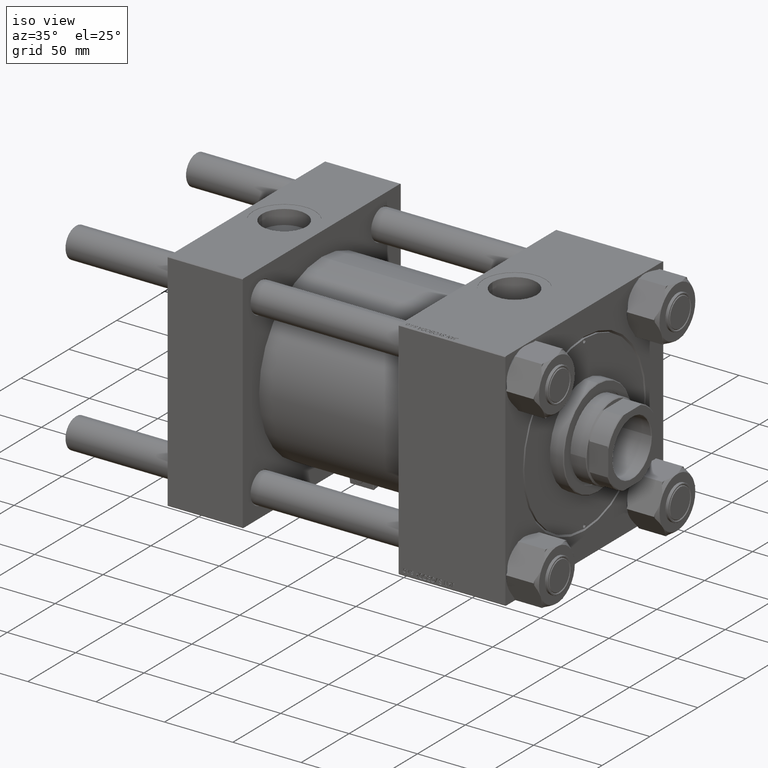
[diagram: clean part render]
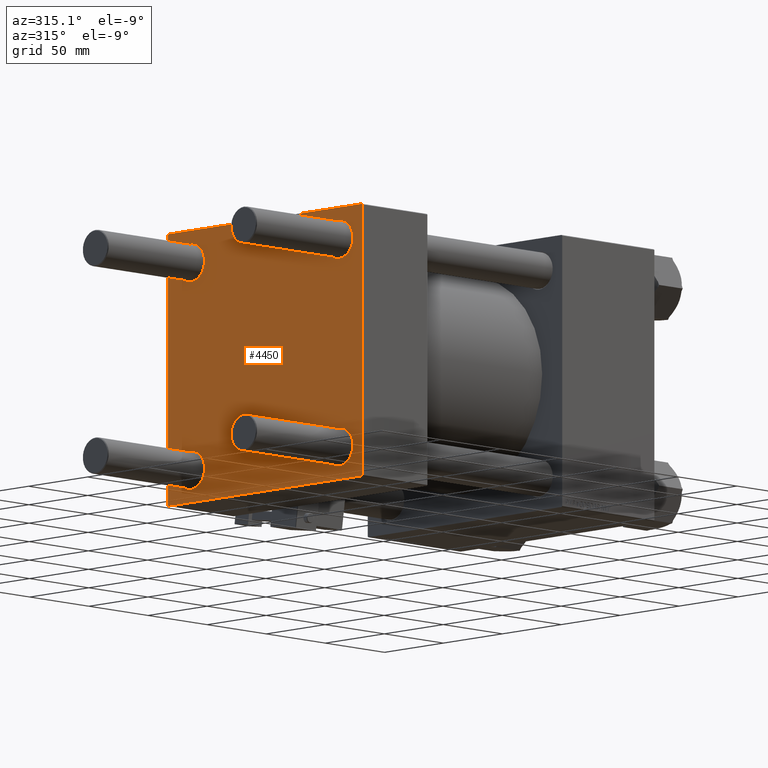
[diagram: tour spotlight — one face highlighted and labeled with its STEP entity id]
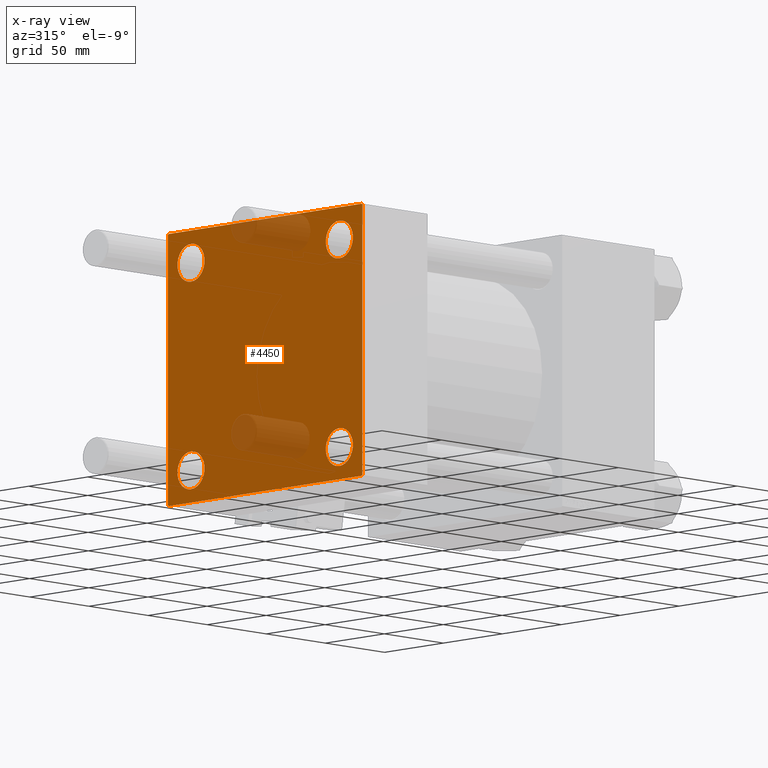
[diagram: x-ray of the same camera — body ghosted, this tour face saturated]
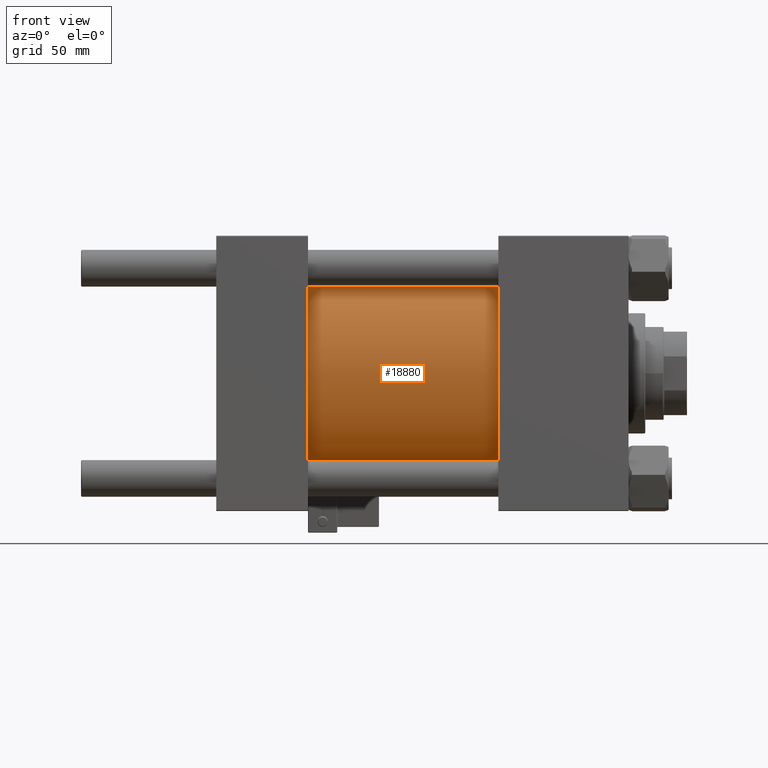
[diagram: tour spotlight — one face highlighted and labeled with its STEP entity id]
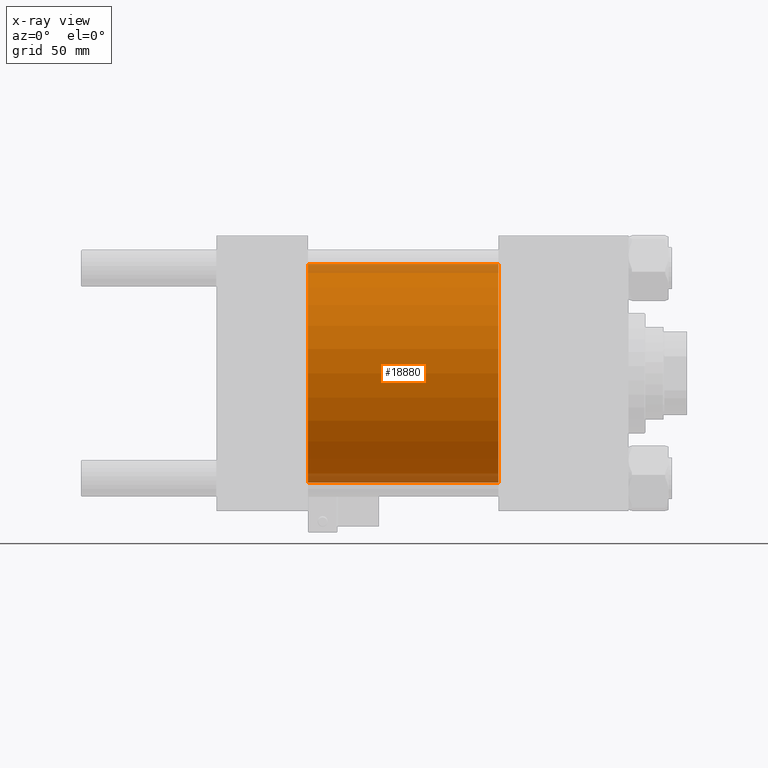
[diagram: x-ray of the same camera — body ghosted, this tour face saturated]
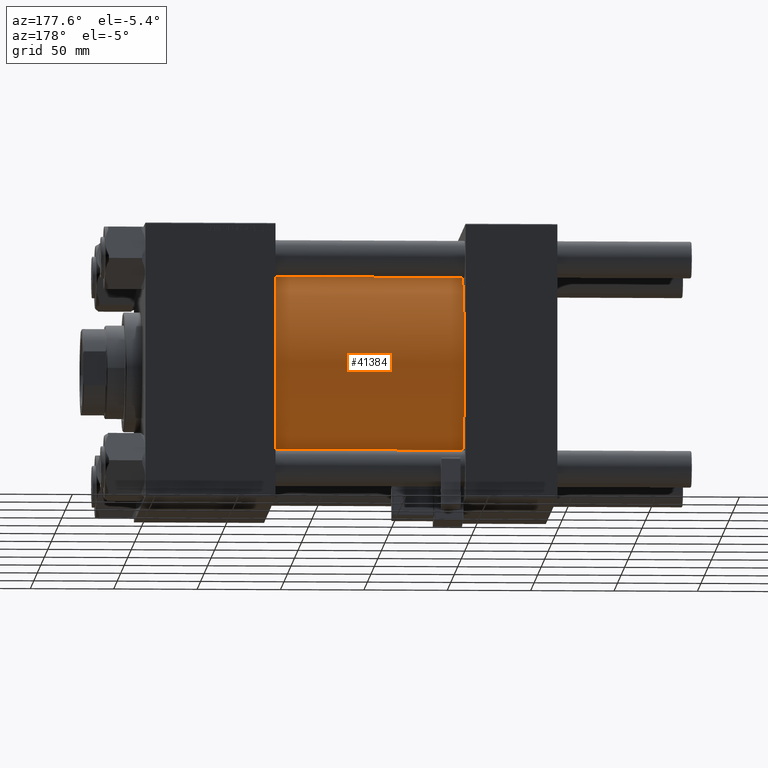
[diagram: tour spotlight — one face highlighted and labeled with its STEP entity id]
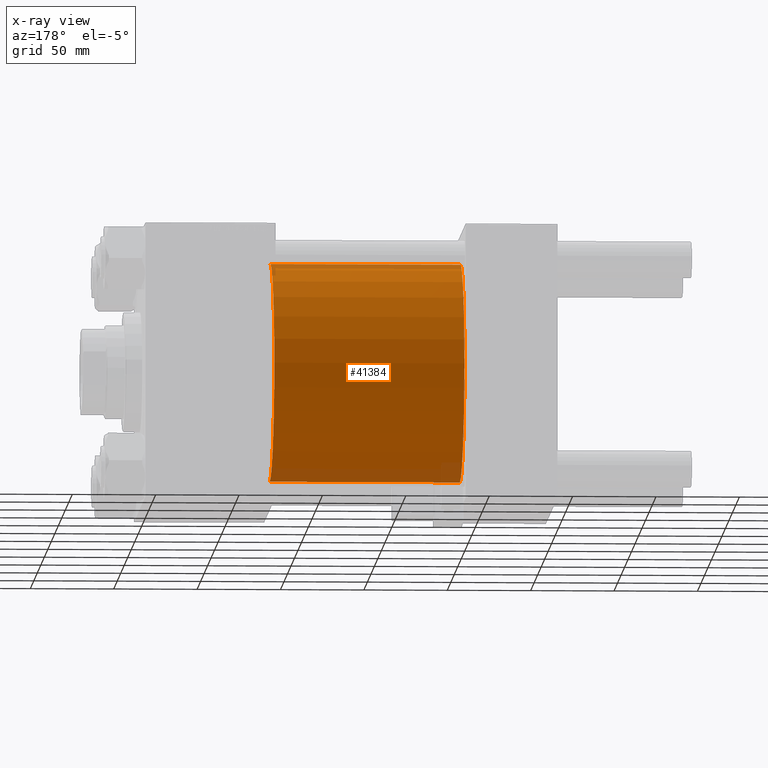
[diagram: x-ray of the same camera — body ghosted, this tour face saturated]
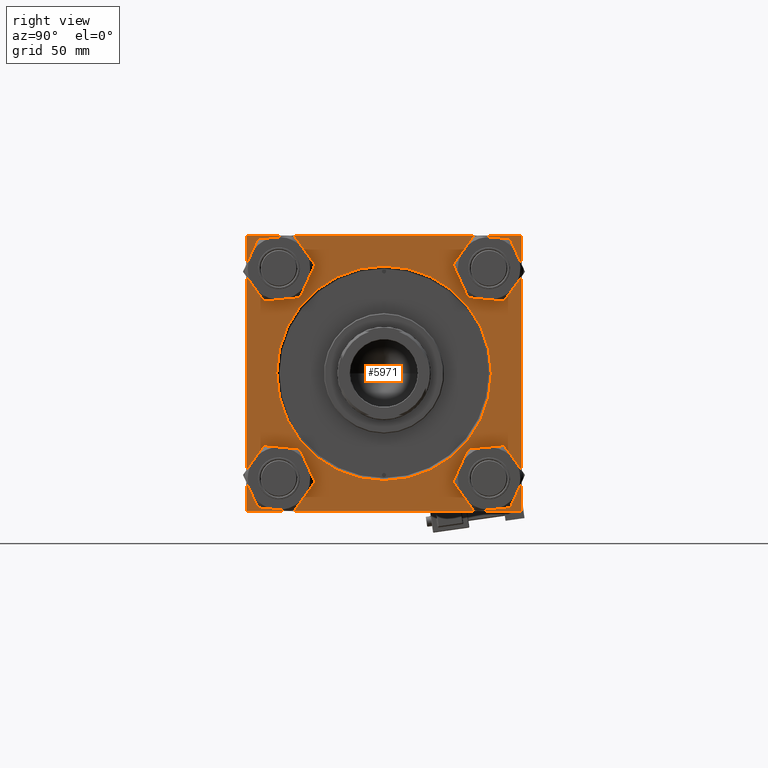
[diagram: tour spotlight — one face highlighted and labeled with its STEP entity id]
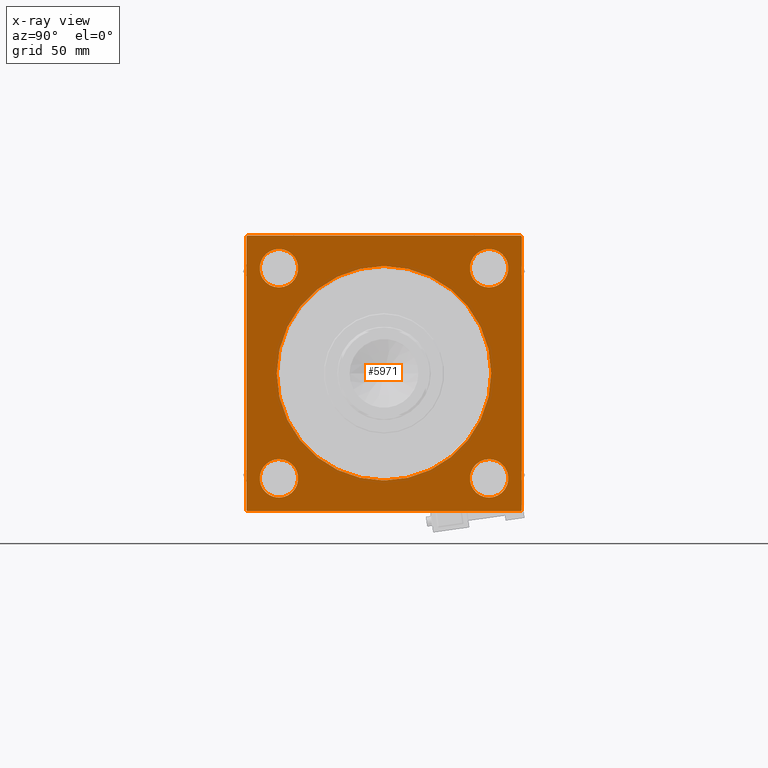
[diagram: x-ray of the same camera — body ghosted, this tour face saturated]
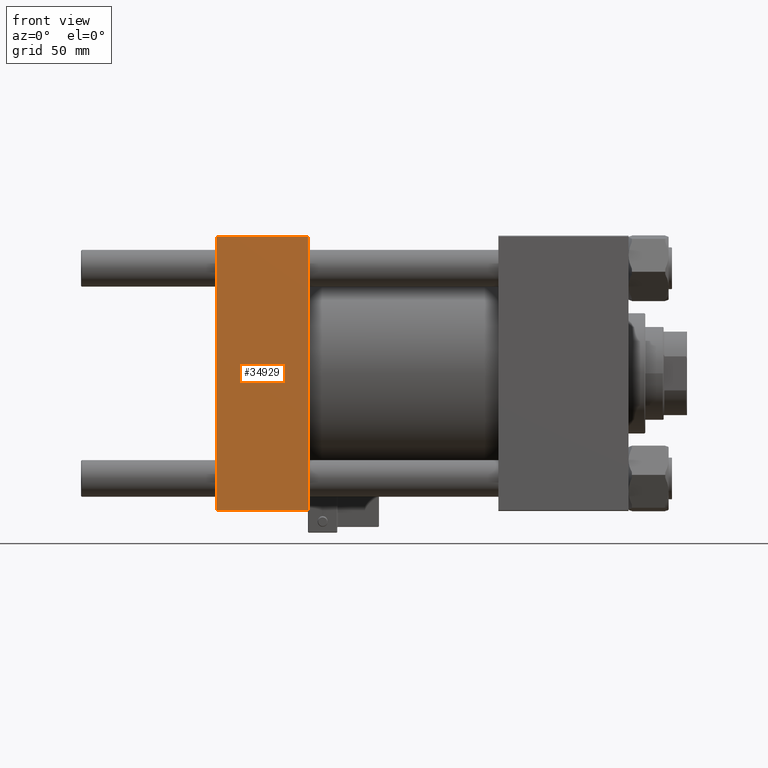
[diagram: tour spotlight — one face highlighted and labeled with its STEP entity id]
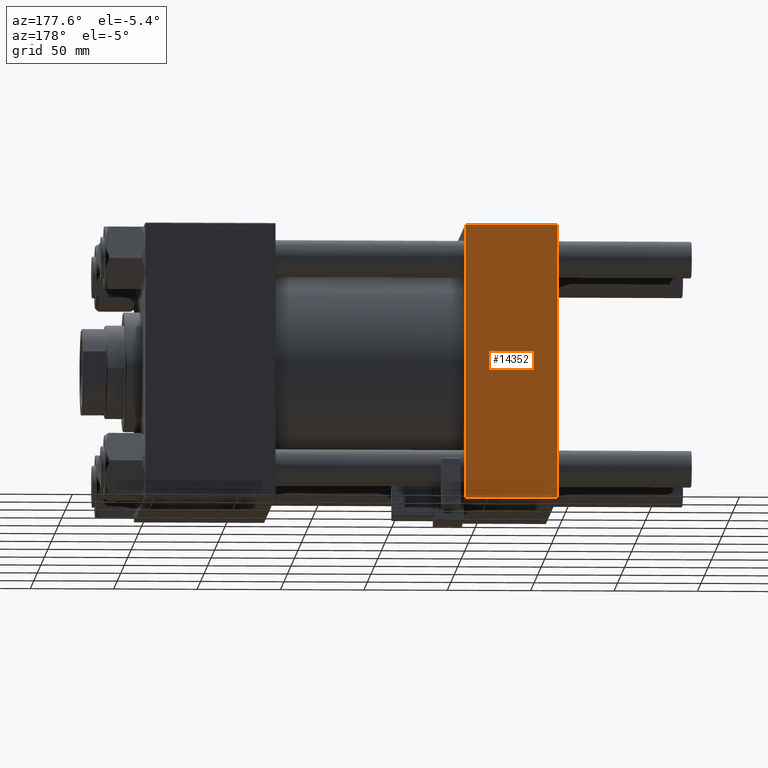
[diagram: tour spotlight — one face highlighted and labeled with its STEP entity id]
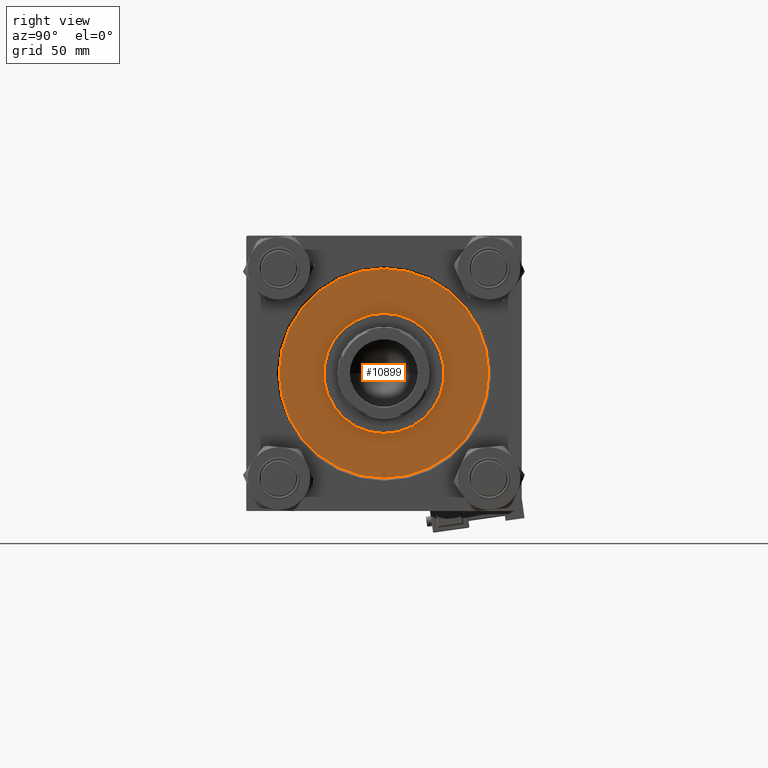
[diagram: tour spotlight — one face highlighted and labeled with its STEP entity id]
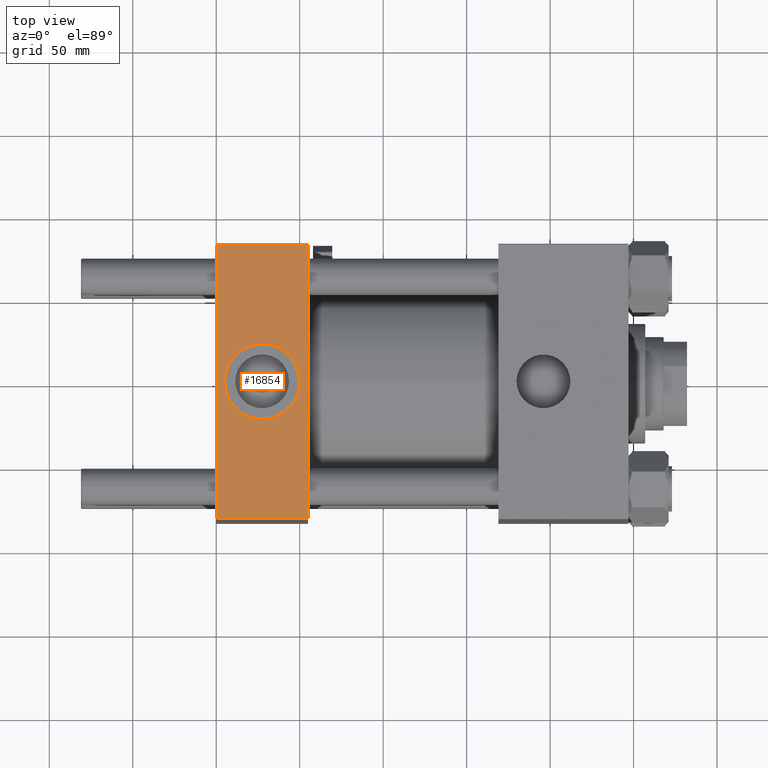
[diagram: tour spotlight — one face highlighted and labeled with its STEP entity id]
A machine part: a face-by-face anatomy tour. The part has 1265 B-rep faces; the first image is the clean iso view, then the 8 largest visible faces are spotlighted one at a time (largest first), each with its STEP entity span.

Face 1 — auxiliary view, entity #4450. An x-ray twin of the same camera follows (body ghosted, this face saturated) — the face is partly hidden behind the body. In plain terms, the highlighted planar face has unit normal (-1, 0, 0).
Definition (entity closure, byte-faithful):
#275 = DIRECTION ( 'NONE',  ( -0.000000000000000000, 0.7071067811865474617, 0.7071067811865474617 ) ) ;
#1589 = VERTEX_POINT ( 'NONE', #16497 ) ;
#1782 = DIRECTION ( 'NONE',  ( 1.000000000000000000, -0.000000000000000000, -0.000000000000000000 ) ) ;
#2125 = CARTESIAN_POINT ( 'NONE',  ( 0.000000000000000000, -82.49999999999997158, 82.00000000000001421 ) ) ;
#2413 = EDGE_CURVE ( 'NONE', #40218, #11908, #8222, .T. ) ;
#2527 = EDGE_LOOP ( 'NONE', ( #8486, #33214 ) ) ;
#2542 = FACE_OUTER_BOUND ( 'NONE', #19112, .T. ) ;
#2557 = DIRECTION ( 'NONE',  ( 0.000000000000000000, 0.000000000000000000, 1.000000000000000000 ) ) ;
#2859 = VERTEX_POINT ( 'NONE', #24701 ) ;
#3770 = CARTESIAN_POINT ( 'NONE',  ( 0.000000000000000000, -62.94999999999998153, 62.95000000000001705 ) ) ;
#3818 = VERTEX_POINT ( 'NONE', #6782 ) ;
#4145 = ORIENTED_EDGE ( 'NONE', *, *, #33357, .T. ) ;
#4158 = VERTEX_POINT ( 'NONE', #28048 ) ;
#4205 = CARTESIAN_POINT ( 'NONE',  ( 0.000000000000000000, 62.95000000000000284, 51.44999999999999574 ) ) ;
#4450 = ADVANCED_FACE ( 'NONE', ( #28125, #22788, #23059, #27316, #2542 ), #15606, .T. ) ;
#5555 = DIRECTION ( 'NONE',  ( 0.000000000000000000, 0.000000000000000000, -1.000000000000000000 ) ) ;
#6246 = CARTESIAN_POINT ( 'NONE',  ( 0.000000000000000000, -62.94999999999998153, 62.95000000000001705 ) ) ;
#6301 = CARTESIAN_POINT ( 'NONE',  ( 0.000000000000000000, -62.94999999999998153, -62.95000000000001705 ) ) ;
#6599 = CARTESIAN_POINT ( 'NONE',  ( 0.000000000000000000, -62.94999999999998153, 51.45000000000000995 ) ) ;
#6782 = CARTESIAN_POINT ( 'NONE',  ( 0.000000000000000000, -82.00000000000000000, -82.50000000000000000 ) ) ;
#6815 = CARTESIAN_POINT ( 'NONE',  ( 0.000000000000000000, -62.94999999999998153, -62.95000000000001705 ) ) ;
#6883 = VERTEX_POINT ( 'NONE', #50096 ) ;
#6906 = DIRECTION ( 'NONE',  ( 0.000000000000000000, -0.7071067811865376918, 0.7071067811865574537 ) ) ;
#7128 = ORIENTED_EDGE ( 'NONE', *, *, #17512, .T. ) ;
#7504 = DIRECTION ( 'NONE',  ( 0.000000000000000000, 0.000000000000000000, 1.000000000000000000 ) ) ;
#7570 = DIRECTION ( 'NONE',  ( -0.000000000000000000, -0.7071067811865474617, -0.7071067811865474617 ) ) ;
#7647 = AXIS2_PLACEMENT_3D ( 'NONE', #6301, #10819, #23088 ) ;
#8139 = EDGE_LOOP ( 'NONE', ( #28760, #4145 ) ) ;
#8222 = CIRCLE ( 'NONE', #51672, 11.50000000000001066 ) ;
#8258 = CARTESIAN_POINT ( 'NONE',  ( 0.000000000000000000, 82.00000000000005684, -82.49999999999997158 ) ) ;
#8486 = ORIENTED_EDGE ( 'NONE', *, *, #14112, .T. ) ;
#8572 = VECTOR ( 'NONE', #6906, 999.9999999999998863 ) ;
#8696 = ORIENTED_EDGE ( 'NONE', *, *, #22375, .F. ) ;
#10025 = VECTOR ( 'NONE', #5555, 1000.000000000000000 ) ;
#10273 = ORIENTED_EDGE ( 'NONE', *, *, #46128, .F. ) ;
#10634 = EDGE_CURVE ( 'NONE', #20204, #1589, #13550, .T. ) ;
#10819 = DIRECTION ( 'NONE',  ( 1.000000000000000000, -0.000000000000000000, -0.000000000000000000 ) ) ;
#11902 = CARTESIAN_POINT ( 'NONE',  ( 0.000000000000000000, 82.50000000000002842, 82.00000000000005684 ) ) ;
#11908 = VERTEX_POINT ( 'NONE', #29249 ) ;
#11925 = CARTESIAN_POINT ( 'NONE',  ( 0.000000000000000000, -81.99999999999997158, 82.50000000000001421 ) ) ;
#13550 = LINE ( 'NONE', #14048, #10025 ) ;
#14048 = CARTESIAN_POINT ( 'NONE',  ( 0.000000000000000000, 82.50000000000002842, 82.50000000000002842 ) ) ;
#14112 = EDGE_CURVE ( 'NONE', #6883, #49778, #17023, .T. ) ;
#14906 = DIRECTION ( 'NONE',  ( 0.000000000000000000, 0.000000000000000000, 1.000000000000000000 ) ) ;
#15445 = CIRCLE ( 'NONE', #37574, 11.50000000000001066 ) ;
#15606 = PLANE ( 'NONE',  #47303 ) ;
#15713 = CARTESIAN_POINT ( 'NONE',  ( 0.000000000000000000, 62.95000000000000284, 62.95000000000000284 ) ) ;
#15944 = EDGE_CURVE ( 'NONE', #3818, #31904, #46834, .T. ) ;
#16497 = CARTESIAN_POINT ( 'NONE',  ( 0.000000000000000000, 82.50000000000002842, -82.00000000000000000 ) ) ;
#17021 = CIRCLE ( 'NONE', #31430, 11.50000000000001066 ) ;
#17023 = CIRCLE ( 'NONE', #28075, 11.50000000000001066 ) ;
#17180 = LINE ( 'NONE', #44846, #24661 ) ;
#17512 = EDGE_CURVE ( 'NONE', #4158, #20204, #17180, .T. ) ;
#18024 = DIRECTION ( 'NONE',  ( 0.000000000000000000, 0.000000000000000000, 1.000000000000000000 ) ) ;
#18768 = DIRECTION ( 'NONE',  ( 1.000000000000000000, -0.000000000000000000, -0.000000000000000000 ) ) ;
#18794 = CARTESIAN_POINT ( 'NONE',  ( 0.000000000000000000, 0.000000000000000000, 0.000000000000000000 ) ) ;
#18887 = VECTOR ( 'NONE', #35138, 1000.000000000000000 ) ;
#19112 = EDGE_LOOP ( 'NONE', ( #43533, #52074, #25009, #34011, #8696, #40655, #10273, #7128 ) ) ;
#19335 = EDGE_LOOP ( 'NONE', ( #27097, #22853 ) ) ;
#19498 = EDGE_CURVE ( 'NONE', #1589, #41956, #34733, .T. ) ;
#19880 = CARTESIAN_POINT ( 'NONE',  ( 0.000000000000000000, 62.95000000000000284, -62.95000000000000284 ) ) ;
#20204 = VERTEX_POINT ( 'NONE', #11902 ) ;
#21871 = EDGE_CURVE ( 'NONE', #39442, #31887, #15445, .T. ) ;
#22163 = VECTOR ( 'NONE', #7570, 1000.000000000000114 ) ;
#22375 = EDGE_CURVE ( 'NONE', #46216, #31904, #43632, .T. ) ;
#22788 = FACE_BOUND ( 'NONE', #8139, .T. ) ;
#22853 = ORIENTED_EDGE ( 'NONE', *, *, #44013, .T. ) ;
#23059 = FACE_BOUND ( 'NONE', #19335, .T. ) ;
#23088 = DIRECTION ( 'NONE',  ( 0.000000000000000000, 0.000000000000000000, 1.000000000000000000 ) ) ;
#23678 = ORIENTED_EDGE ( 'NONE', *, *, #2413, .T. ) ;
#24661 = VECTOR ( 'NONE', #48838, 1000.000000000000114 ) ;
#24701 = CARTESIAN_POINT ( 'NONE',  ( 0.000000000000000000, -62.94999999999998153, -74.45000000000003126 ) ) ;
#25009 = ORIENTED_EDGE ( 'NONE', *, *, #42771, .T. ) ;
#25602 = LINE ( 'NONE', #29326, #44199 ) ;
#27097 = ORIENTED_EDGE ( 'NONE', *, *, #21871, .T. ) ;
#27316 = FACE_BOUND ( 'NONE', #34239, .T. ) ;
#28048 = CARTESIAN_POINT ( 'NONE',  ( 0.000000000000000000, 82.00000000000005684, 82.50000000000002842 ) ) ;
#28075 = AXIS2_PLACEMENT_3D ( 'NONE', #6246, #18768, #46188 ) ;
#28125 = FACE_BOUND ( 'NONE', #2527, .T. ) ;
#28544 = VERTEX_POINT ( 'NONE', #11925 ) ;
#28760 = ORIENTED_EDGE ( 'NONE', *, *, #45920, .T. ) ;
#28835 = CIRCLE ( 'NONE', #49333, 11.50000000000001066 ) ;
#29249 = CARTESIAN_POINT ( 'NONE',  ( 0.000000000000000000, 62.95000000000000284, 74.45000000000001705 ) ) ;
#29326 = CARTESIAN_POINT ( 'NONE',  ( 0.000000000000000000, 82.50000000000002842, 82.50000000000002842 ) ) ;
#30009 = CARTESIAN_POINT ( 'NONE',  ( 0.000000000000000000, 62.95000000000000284, 62.95000000000000284 ) ) ;
#30865 = CARTESIAN_POINT ( 'NONE',  ( 0.000000000000000000, -82.49999999999997158, 82.50000000000001421 ) ) ;
#31430 = AXIS2_PLACEMENT_3D ( 'NONE', #3770, #52215, #7504 ) ;
#31835 = DIRECTION ( 'NONE',  ( 0.000000000000000000, 0.000000000000000000, 1.000000000000000000 ) ) ;
#31887 = VERTEX_POINT ( 'NONE', #34914 ) ;
#31904 = VERTEX_POINT ( 'NONE', #38379 ) ;
#32067 = CARTESIAN_POINT ( 'NONE',  ( 0.000000000000000000, 62.95000000000000284, -62.95000000000000284 ) ) ;
#33062 = DIRECTION ( 'NONE',  ( 0.000000000000000000, -1.000000000000000000, -8.410780489584519171E-17 ) ) ;
#33214 = ORIENTED_EDGE ( 'NONE', *, *, #46094, .T. ) ;
#33357 = EDGE_CURVE ( 'NONE', #2859, #36527, #51480, .T. ) ;
#34011 = ORIENTED_EDGE ( 'NONE', *, *, #15944, .T. ) ;
#34239 = EDGE_LOOP ( 'NONE', ( #35351, #23678 ) ) ;
#34387 = LINE ( 'NONE', #35172, #43305 ) ;
#34733 = LINE ( 'NONE', #50950, #22163 ) ;
#34914 = CARTESIAN_POINT ( 'NONE',  ( 0.000000000000000000, 62.95000000000000284, -74.45000000000001705 ) ) ;
#35138 = DIRECTION ( 'NONE',  ( 0.000000000000000000, -1.682156097916903588E-16, -1.000000000000000000 ) ) ;
#35172 = CARTESIAN_POINT ( 'NONE',  ( 0.000000000000000000, 82.50000000000002842, -82.49999999999997158 ) ) ;
#35351 = ORIENTED_EDGE ( 'NONE', *, *, #51069, .T. ) ;
#35358 = AXIS2_PLACEMENT_3D ( 'NONE', #6815, #43817, #2557 ) ;
#35701 = CIRCLE ( 'NONE', #7647, 11.50000000000001066 ) ;
#36527 = VERTEX_POINT ( 'NONE', #51508 ) ;
#36751 = CARTESIAN_POINT ( 'NONE',  ( 0.000000000000000000, -82.25000000000000000, 82.25000000000000000 ) ) ;
#37574 = AXIS2_PLACEMENT_3D ( 'NONE', #32067, #52544, #45094 ) ;
#38133 = EDGE_CURVE ( 'NONE', #46216, #28544, #48711, .T. ) ;
#38379 = CARTESIAN_POINT ( 'NONE',  ( 0.000000000000000000, -82.50000000000000000, -81.99999999999998579 ) ) ;
#39127 = DIRECTION ( 'NONE',  ( 1.000000000000000000, -0.000000000000000000, -0.000000000000000000 ) ) ;
#39282 = DIRECTION ( 'NONE',  ( -1.000000000000000000, 0.000000000000000000, 0.000000000000000000 ) ) ;
#39442 = VERTEX_POINT ( 'NONE', #43795 ) ;
#40218 = VERTEX_POINT ( 'NONE', #4205 ) ;
#40655 = ORIENTED_EDGE ( 'NONE', *, *, #38133, .T. ) ;
#40979 = AXIS2_PLACEMENT_3D ( 'NONE', #30009, #1782, #18024 ) ;
#41956 = VERTEX_POINT ( 'NONE', #8258 ) ;
#42331 = VECTOR ( 'NONE', #275, 1000.000000000000114 ) ;
#42771 = EDGE_CURVE ( 'NONE', #41956, #3818, #34387, .T. ) ;
#43279 = DIRECTION ( 'NONE',  ( 1.000000000000000000, -0.000000000000000000, -0.000000000000000000 ) ) ;
#43305 = VECTOR ( 'NONE', #51384, 1000.000000000000000 ) ;
#43533 = ORIENTED_EDGE ( 'NONE', *, *, #10634, .T. ) ;
#43632 = LINE ( 'NONE', #30865, #18887 ) ;
#43795 = CARTESIAN_POINT ( 'NONE',  ( 0.000000000000000000, 62.95000000000000284, -51.44999999999999574 ) ) ;
#43817 = DIRECTION ( 'NONE',  ( 1.000000000000000000, -0.000000000000000000, -0.000000000000000000 ) ) ;
#44013 = EDGE_CURVE ( 'NONE', #31887, #39442, #28835, .T. ) ;
#44199 = VECTOR ( 'NONE', #33062, 1000.000000000000000 ) ;
#44846 = CARTESIAN_POINT ( 'NONE',  ( 0.000000000000000000, 82.25000000000002842, 82.25000000000002842 ) ) ;
#45094 = DIRECTION ( 'NONE',  ( 0.000000000000000000, 0.000000000000000000, 1.000000000000000000 ) ) ;
#45920 = EDGE_CURVE ( 'NONE', #36527, #2859, #35701, .T. ) ;
#46094 = EDGE_CURVE ( 'NONE', #49778, #6883, #17021, .T. ) ;
#46128 = EDGE_CURVE ( 'NONE', #4158, #28544, #25602, .T. ) ;
#46188 = DIRECTION ( 'NONE',  ( 0.000000000000000000, 0.000000000000000000, 1.000000000000000000 ) ) ;
#46216 = VERTEX_POINT ( 'NONE', #2125 ) ;
#46834 = LINE ( 'NONE', #51353, #8572 ) ;
#47303 = AXIS2_PLACEMENT_3D ( 'NONE', #18794, #39282, #31835 ) ;
#48644 = CIRCLE ( 'NONE', #40979, 11.50000000000001066 ) ;
#48711 = LINE ( 'NONE', #36751, #42331 ) ;
#48838 = DIRECTION ( 'NONE',  ( 0.000000000000000000, 0.7071067811865474617, -0.7071067811865474617 ) ) ;
#49333 = AXIS2_PLACEMENT_3D ( 'NONE', #19880, #43279, #51803 ) ;
#49778 = VERTEX_POINT ( 'NONE', #6599 ) ;
#50096 = CARTESIAN_POINT ( 'NONE',  ( 0.000000000000000000, -62.94999999999998153, 74.45000000000003126 ) ) ;
#50950 = CARTESIAN_POINT ( 'NONE',  ( 0.000000000000000000, 82.25000000000001421, -82.25000000000001421 ) ) ;
#51069 = EDGE_CURVE ( 'NONE', #11908, #40218, #48644, .T. ) ;
#51353 = CARTESIAN_POINT ( 'NONE',  ( 0.000000000000000000, -82.25000000000115108, -82.24999999999886313 ) ) ;
#51384 = DIRECTION ( 'NONE',  ( 0.000000000000000000, -1.000000000000000000, -1.682156097916903588E-16 ) ) ;
#51480 = CIRCLE ( 'NONE', #35358, 11.50000000000001066 ) ;
#51508 = CARTESIAN_POINT ( 'NONE',  ( 0.000000000000000000, -62.94999999999998153, -51.45000000000000995 ) ) ;
#51672 = AXIS2_PLACEMENT_3D ( 'NONE', #15713, #39127, #14906 ) ;
#51803 = DIRECTION ( 'NONE',  ( 0.000000000000000000, 0.000000000000000000, 1.000000000000000000 ) ) ;
#52074 = ORIENTED_EDGE ( 'NONE', *, *, #19498, .T. ) ;
#52215 = DIRECTION ( 'NONE',  ( 1.000000000000000000, -0.000000000000000000, -0.000000000000000000 ) ) ;
#52544 = DIRECTION ( 'NONE',  ( 1.000000000000000000, -0.000000000000000000, -0.000000000000000000 ) ) ;

Face 2 — front view, entity #18880. An x-ray twin of the same camera follows (body ghosted, this face saturated) — the face is partly hidden behind the body. In plain terms, the highlighted cylindrical surface (partial cylindrical patch) has radius 65.5 mm, axis along (-1, -0, -0).
Definition (entity closure, byte-faithful):
#890 = AXIS2_PLACEMENT_3D ( 'NONE', #26358, #43091, #18112 ) ;
#1869 = CYLINDRICAL_SURFACE ( 'NONE', #890, 65.50000000000001421 ) ;
#2313 = VECTOR ( 'NONE', #38328, 1000.000000000000000 ) ;
#4014 = CARTESIAN_POINT ( 'NONE',  ( 54.99999999999999289, 0.000000000000000000, 65.50000000000001421 ) ) ;
#4926 = VERTEX_POINT ( 'NONE', #4014 ) ;
#8376 = EDGE_CURVE ( 'NONE', #11501, #27644, #30081, .T. ) ;
#9563 = CARTESIAN_POINT ( 'NONE',  ( 169.0000000000000000, 8.021436534415164826E-15, -65.50000000000001421 ) ) ;
#11501 = VERTEX_POINT ( 'NONE', #9563 ) ;
#11712 = VERTEX_POINT ( 'NONE', #45185 ) ;
#11793 = CIRCLE ( 'NONE', #38975, 65.50000000000001421 ) ;
#11855 = EDGE_CURVE ( 'NONE', #11712, #11501, #11793, .T. ) ;
#13483 = CARTESIAN_POINT ( 'NONE',  ( 54.99999999999999289, 8.021436534415164826E-15, -65.50000000000001421 ) ) ;
#15759 = DIRECTION ( 'NONE',  ( 1.000000000000000000, -0.000000000000000000, -0.000000000000000000 ) ) ;
#17577 = EDGE_CURVE ( 'NONE', #4926, #27644, #25485, .T. ) ;
#18112 = DIRECTION ( 'NONE',  ( 0.000000000000000000, 0.000000000000000000, 1.000000000000000000 ) ) ;
#18880 = ADVANCED_FACE ( 'NONE', ( #22105 ), #1869, .T. ) ;
#21261 = DIRECTION ( 'NONE',  ( 1.000000000000000000, 0.000000000000000000, 0.000000000000000000 ) ) ;
#22105 = FACE_OUTER_BOUND ( 'NONE', #52321, .T. ) ;
#25485 = CIRCLE ( 'NONE', #28070, 65.50000000000001421 ) ;
#26358 = CARTESIAN_POINT ( 'NONE',  ( 169.0000000000000000, 0.000000000000000000, 0.000000000000000000 ) ) ;
#27644 = VERTEX_POINT ( 'NONE', #13483 ) ;
#28070 = AXIS2_PLACEMENT_3D ( 'NONE', #40504, #15759, #47688 ) ;
#29878 = DIRECTION ( 'NONE',  ( -1.000000000000000000, -0.000000000000000000, -0.000000000000000000 ) ) ;
#30081 = LINE ( 'NONE', #34857, #2313 ) ;
#30125 = LINE ( 'NONE', #34383, #32063 ) ;
#32063 = VECTOR ( 'NONE', #29878, 1000.000000000000000 ) ;
#33253 = CARTESIAN_POINT ( 'NONE',  ( 169.0000000000000000, 0.000000000000000000, 0.000000000000000000 ) ) ;
#34205 = ORIENTED_EDGE ( 'NONE', *, *, #17577, .T. ) ;
#34383 = CARTESIAN_POINT ( 'NONE',  ( 169.0000000000000000, 0.000000000000000000, 65.50000000000001421 ) ) ;
#34478 = ORIENTED_EDGE ( 'NONE', *, *, #36096, .T. ) ;
#34857 = CARTESIAN_POINT ( 'NONE',  ( 169.0000000000000000, 8.021436534415164826E-15, -65.50000000000001421 ) ) ;
#36096 = EDGE_CURVE ( 'NONE', #11712, #4926, #30125, .T. ) ;
#37756 = DIRECTION ( 'NONE',  ( 0.000000000000000000, 0.000000000000000000, -1.000000000000000000 ) ) ;
#38328 = DIRECTION ( 'NONE',  ( -1.000000000000000000, -0.000000000000000000, -0.000000000000000000 ) ) ;
#38975 = AXIS2_PLACEMENT_3D ( 'NONE', #33253, #21261, #37756 ) ;
#40504 = CARTESIAN_POINT ( 'NONE',  ( 54.99999999999999289, 0.000000000000000000, 0.000000000000000000 ) ) ;
#43091 = DIRECTION ( 'NONE',  ( -1.000000000000000000, -0.000000000000000000, -0.000000000000000000 ) ) ;
#45185 = CARTESIAN_POINT ( 'NONE',  ( 169.0000000000000000, 0.000000000000000000, 65.50000000000001421 ) ) ;
#45196 = ORIENTED_EDGE ( 'NONE', *, *, #8376, .F. ) ;
#47231 = ORIENTED_EDGE ( 'NONE', *, *, #11855, .F. ) ;
#47688 = DIRECTION ( 'NONE',  ( 0.000000000000000000, 0.000000000000000000, 1.000000000000000000 ) ) ;
#52321 = EDGE_LOOP ( 'NONE', ( #45196, #47231, #34478, #34205 ) ) ;

Face 3 — auxiliary view, entity #41384. An x-ray twin of the same camera follows (body ghosted, this face saturated) — the face is partly hidden behind the body. In plain terms, the highlighted cylindrical surface (partial cylindrical patch) has radius 65.5 mm, axis along (-1, -0, -0).
Definition (entity closure, byte-faithful):
#2313 = VECTOR ( 'NONE', #38328, 1000.000000000000000 ) ;
#3595 = DIRECTION ( 'NONE',  ( -1.000000000000000000, -0.000000000000000000, -0.000000000000000000 ) ) ;
#4014 = CARTESIAN_POINT ( 'NONE',  ( 54.99999999999999289, 0.000000000000000000, 65.50000000000001421 ) ) ;
#4541 = CARTESIAN_POINT ( 'NONE',  ( 169.0000000000000000, 0.000000000000000000, 0.000000000000000000 ) ) ;
#4926 = VERTEX_POINT ( 'NONE', #4014 ) ;
#5757 = ORIENTED_EDGE ( 'NONE', *, *, #52339, .F. ) ;
#7324 = DIRECTION ( 'NONE',  ( 0.000000000000000000, 0.000000000000000000, 1.000000000000000000 ) ) ;
#7910 = CIRCLE ( 'NONE', #41913, 65.50000000000001421 ) ;
#8376 = EDGE_CURVE ( 'NONE', #11501, #27644, #30081, .T. ) ;
#9563 = CARTESIAN_POINT ( 'NONE',  ( 169.0000000000000000, 8.021436534415164826E-15, -65.50000000000001421 ) ) ;
#11501 = VERTEX_POINT ( 'NONE', #9563 ) ;
#11712 = VERTEX_POINT ( 'NONE', #45185 ) ;
#11739 = ORIENTED_EDGE ( 'NONE', *, *, #8376, .T. ) ;
#13483 = CARTESIAN_POINT ( 'NONE',  ( 54.99999999999999289, 8.021436534415164826E-15, -65.50000000000001421 ) ) ;
#15339 = DIRECTION ( 'NONE',  ( 0.000000000000000000, 0.000000000000000000, 1.000000000000000000 ) ) ;
#15608 = CARTESIAN_POINT ( 'NONE',  ( 54.99999999999999289, 0.000000000000000000, 0.000000000000000000 ) ) ;
#16392 = FACE_OUTER_BOUND ( 'NONE', #35443, .T. ) ;
#19950 = ORIENTED_EDGE ( 'NONE', *, *, #24879, .T. ) ;
#21747 = ORIENTED_EDGE ( 'NONE', *, *, #36096, .F. ) ;
#24052 = CIRCLE ( 'NONE', #38447, 65.50000000000001421 ) ;
#24539 = DIRECTION ( 'NONE',  ( 0.000000000000000000, 0.000000000000000000, -1.000000000000000000 ) ) ;
#24879 = EDGE_CURVE ( 'NONE', #27644, #4926, #7910, .T. ) ;
#27644 = VERTEX_POINT ( 'NONE', #13483 ) ;
#29878 = DIRECTION ( 'NONE',  ( -1.000000000000000000, -0.000000000000000000, -0.000000000000000000 ) ) ;
#30081 = LINE ( 'NONE', #34857, #2313 ) ;
#30125 = LINE ( 'NONE', #34383, #32063 ) ;
#32063 = VECTOR ( 'NONE', #29878, 1000.000000000000000 ) ;
#34383 = CARTESIAN_POINT ( 'NONE',  ( 169.0000000000000000, 0.000000000000000000, 65.50000000000001421 ) ) ;
#34857 = CARTESIAN_POINT ( 'NONE',  ( 169.0000000000000000, 8.021436534415164826E-15, -65.50000000000001421 ) ) ;
#35443 = EDGE_LOOP ( 'NONE', ( #5757, #11739, #19950, #21747 ) ) ;
#36096 = EDGE_CURVE ( 'NONE', #11712, #4926, #30125, .T. ) ;
#36355 = CARTESIAN_POINT ( 'NONE',  ( 169.0000000000000000, 0.000000000000000000, 0.000000000000000000 ) ) ;
#38328 = DIRECTION ( 'NONE',  ( -1.000000000000000000, -0.000000000000000000, -0.000000000000000000 ) ) ;
#38447 = AXIS2_PLACEMENT_3D ( 'NONE', #4541, #48995, #24539 ) ;
#40754 = AXIS2_PLACEMENT_3D ( 'NONE', #36355, #3595, #7324 ) ;
#41384 = ADVANCED_FACE ( 'NONE', ( #16392 ), #44326, .T. ) ;
#41913 = AXIS2_PLACEMENT_3D ( 'NONE', #15608, #51783, #15339 ) ;
#44326 = CYLINDRICAL_SURFACE ( 'NONE', #40754, 65.50000000000001421 ) ;
#45185 = CARTESIAN_POINT ( 'NONE',  ( 169.0000000000000000, 0.000000000000000000, 65.50000000000001421 ) ) ;
#48995 = DIRECTION ( 'NONE',  ( 1.000000000000000000, 0.000000000000000000, 0.000000000000000000 ) ) ;
#51783 = DIRECTION ( 'NONE',  ( 1.000000000000000000, -0.000000000000000000, -0.000000000000000000 ) ) ;
#52339 = EDGE_CURVE ( 'NONE', #11501, #11712, #24052, .T. ) ;

Face 4 — right view, entity #5971. An x-ray twin of the same camera follows (body ghosted, this face saturated) — the face is partly hidden behind the body. In plain terms, the highlighted planar face has unit normal (-1, 0, 0).
Definition (entity closure, byte-faithful):
#506 = EDGE_CURVE ( 'NONE', #37278, #10450, #42122, .T. ) ;
#703 = CARTESIAN_POINT ( 'NONE',  ( 247.0000000000000000, -62.94999999999998153, 74.45000000000003126 ) ) ;
#963 = ORIENTED_EDGE ( 'NONE', *, *, #7248, .T. ) ;
#1222 = ORIENTED_EDGE ( 'NONE', *, *, #506, .T. ) ;
#1343 = FACE_BOUND ( 'NONE', #2232, .T. ) ;
#1521 = EDGE_CURVE ( 'NONE', #7066, #51752, #3183, .T. ) ;
#2232 = EDGE_LOOP ( 'NONE', ( #25652, #47447 ) ) ;
#2384 = CARTESIAN_POINT ( 'NONE',  ( 247.0000000000000000, 81.99999999999995737, 82.50000000000000000 ) ) ;
#2607 = AXIS2_PLACEMENT_3D ( 'NONE', #19178, #22913, #14118 ) ;
#2648 = CIRCLE ( 'NONE', #2607, 11.50000000000006573 ) ;
#2830 = CIRCLE ( 'NONE', #31736, 64.25000000000008527 ) ;
#2897 = DIRECTION ( 'NONE',  ( 0.000000000000000000, 0.000000000000000000, 1.000000000000000000 ) ) ;
#3112 = CARTESIAN_POINT ( 'NONE',  ( 247.0000000000000000, 62.95000000000000284, 51.44999999999999574 ) ) ;
#3183 = CIRCLE ( 'NONE', #4044, 11.50000000000006573 ) ;
#3223 = CIRCLE ( 'NONE', #14274, 11.50000000000001066 ) ;
#3456 = ORIENTED_EDGE ( 'NONE', *, *, #9087, .T. ) ;
#3601 = ORIENTED_EDGE ( 'NONE', *, *, #16003, .T. ) ;
#4044 = AXIS2_PLACEMENT_3D ( 'NONE', #18628, #35137, #43631 ) ;
#4092 = DIRECTION ( 'NONE',  ( -1.000000000000000000, -0.000000000000000000, 0.000000000000000000 ) ) ;
#4772 = EDGE_LOOP ( 'NONE', ( #6277, #8617 ) ) ;
#5971 = ADVANCED_FACE ( 'NONE', ( #25590, #38577, #41802, #1343, #33838, #50044 ), #13586, .F. ) ;
#6239 = CARTESIAN_POINT ( 'NONE',  ( 247.0000000000000000, 82.50000000000001421, 82.50000000000000000 ) ) ;
#6277 = ORIENTED_EDGE ( 'NONE', *, *, #48588, .T. ) ;
#6961 = CARTESIAN_POINT ( 'NONE',  ( 247.0000000000000000, 82.00000000000001421, -82.50000000000002842 ) ) ;
#7066 = VERTEX_POINT ( 'NONE', #8272 ) ;
#7125 = DIRECTION ( 'NONE',  ( -1.000000000000000000, -0.000000000000000000, 0.000000000000000000 ) ) ;
#7248 = EDGE_CURVE ( 'NONE', #51896, #10716, #30330, .T. ) ;
#7343 = CARTESIAN_POINT ( 'NONE',  ( 247.0000000000000000, 62.95000000000000284, -74.45000000000001705 ) ) ;
#7746 = CARTESIAN_POINT ( 'NONE',  ( 247.0000000000000000, 82.50000000000001421, -82.00000000000002842 ) ) ;
#7921 = DIRECTION ( 'NONE',  ( -1.000000000000000000, -0.000000000000000000, 0.000000000000000000 ) ) ;
#8067 = DIRECTION ( 'NONE',  ( -0.000000000000000000, -0.7071067811865574537, -0.7071067811865376918 ) ) ;
#8272 = CARTESIAN_POINT ( 'NONE',  ( 247.0000000000000000, -62.94999999999998153, -51.44999999999995310 ) ) ;
#8333 = LINE ( 'NONE', #20594, #17278 ) ;
#8617 = ORIENTED_EDGE ( 'NONE', *, *, #1521, .T. ) ;
#9087 = EDGE_CURVE ( 'NONE', #20193, #22740, #13395, .T. ) ;
#9635 = VERTEX_POINT ( 'NONE', #50061 ) ;
#9835 = CARTESIAN_POINT ( 'NONE',  ( 247.0000000000000000, -82.49999999999997158, 82.49999999999997158 ) ) ;
#10013 = VERTEX_POINT ( 'NONE', #19833 ) ;
#10067 = AXIS2_PLACEMENT_3D ( 'NONE', #51842, #7125, #35898 ) ;
#10214 = CIRCLE ( 'NONE', #46756, 11.50000000000001066 ) ;
#10215 = CIRCLE ( 'NONE', #35748, 11.50000000000001066 ) ;
#10450 = VERTEX_POINT ( 'NONE', #51362 ) ;
#10474 = CARTESIAN_POINT ( 'NONE',  ( 247.0000000000000000, 0.000000000000000000, 0.000000000000000000 ) ) ;
#10716 = VERTEX_POINT ( 'NONE', #3112 ) ;
#10760 = EDGE_CURVE ( 'NONE', #10716, #51896, #3223, .T. ) ;
#11327 = ORIENTED_EDGE ( 'NONE', *, *, #35442, .T. ) ;
#11546 = EDGE_CURVE ( 'NONE', #51301, #41793, #50863, .T. ) ;
#12630 = CIRCLE ( 'NONE', #18587, 11.50000000000001066 ) ;
#12700 = CARTESIAN_POINT ( 'NONE',  ( 247.0000000000000000, -81.99999999999998579, -82.50000000000002842 ) ) ;
#12937 = CARTESIAN_POINT ( 'NONE',  ( 247.0000000000000000, -62.94999999999998153, 51.45000000000000995 ) ) ;
#12960 = DIRECTION ( 'NONE',  ( 0.000000000000000000, 0.000000000000000000, 1.000000000000000000 ) ) ;
#13227 = VERTEX_POINT ( 'NONE', #703 ) ;
#13395 = CIRCLE ( 'NONE', #16836, 64.25000000000008527 ) ;
#13586 = PLANE ( 'NONE',  #17556 ) ;
#14118 = DIRECTION ( 'NONE',  ( 0.000000000000000000, 0.000000000000000000, 1.000000000000000000 ) ) ;
#14152 = ORIENTED_EDGE ( 'NONE', *, *, #37256, .T. ) ;
#14274 = AXIS2_PLACEMENT_3D ( 'NONE', #41177, #7921, #12960 ) ;
#15465 = EDGE_CURVE ( 'NONE', #21540, #13227, #10215, .T. ) ;
#15868 = EDGE_LOOP ( 'NONE', ( #3456, #23257 ) ) ;
#16003 = EDGE_CURVE ( 'NONE', #26510, #37278, #38851, .T. ) ;
#16444 = VERTEX_POINT ( 'NONE', #42391 ) ;
#16628 = CARTESIAN_POINT ( 'NONE',  ( 247.0000000000000000, 7.868355684521755357E-15, 64.25000000000008527 ) ) ;
#16836 = AXIS2_PLACEMENT_3D ( 'NONE', #40568, #4092, #29123 ) ;
#17278 = VECTOR ( 'NONE', #8067, 999.9999999999998863 ) ;
#17454 = DIRECTION ( 'NONE',  ( 0.000000000000000000, 0.000000000000000000, 1.000000000000000000 ) ) ;
#17556 = AXIS2_PLACEMENT_3D ( 'NONE', #46820, #26869, #2897 ) ;
#17760 = LINE ( 'NONE', #12700, #28649 ) ;
#17896 = CARTESIAN_POINT ( 'NONE',  ( 247.0000000000000000, 62.95000000000000284, -51.44999999999999574 ) ) ;
#18587 = AXIS2_PLACEMENT_3D ( 'NONE', #41650, #26205, #17454 ) ;
#18628 = CARTESIAN_POINT ( 'NONE',  ( 247.0000000000000000, -62.94999999999998153, -62.95000000000001705 ) ) ;
#18688 = ORIENTED_EDGE ( 'NONE', *, *, #11546, .T. ) ;
#19178 = CARTESIAN_POINT ( 'NONE',  ( 247.0000000000000000, -62.94999999999998153, -62.95000000000001705 ) ) ;
#19465 = CARTESIAN_POINT ( 'NONE',  ( 247.0000000000000000, 81.99999999999995737, 82.50000000000000000 ) ) ;
#19484 = EDGE_CURVE ( 'NONE', #26510, #48331, #42697, .T. ) ;
#19738 = ORIENTED_EDGE ( 'NONE', *, *, #19484, .F. ) ;
#19833 = CARTESIAN_POINT ( 'NONE',  ( 247.0000000000000000, -81.99999999999998579, -82.50000000000002842 ) ) ;
#20193 = VERTEX_POINT ( 'NONE', #22900 ) ;
#20594 = CARTESIAN_POINT ( 'NONE',  ( 247.0000000000000000, -82.49999999999997158, 81.99999999999997158 ) ) ;
#21128 = ORIENTED_EDGE ( 'NONE', *, *, #24260, .T. ) ;
#21540 = VERTEX_POINT ( 'NONE', #12937 ) ;
#22696 = VECTOR ( 'NONE', #29902, 1000.000000000000000 ) ;
#22740 = VERTEX_POINT ( 'NONE', #16628 ) ;
#22900 = CARTESIAN_POINT ( 'NONE',  ( 247.0000000000000000, 0.000000000000000000, -64.25000000000008527 ) ) ;
#22913 = DIRECTION ( 'NONE',  ( -1.000000000000000000, -0.000000000000000000, 0.000000000000000000 ) ) ;
#23257 = ORIENTED_EDGE ( 'NONE', *, *, #25205, .T. ) ;
#24260 = EDGE_CURVE ( 'NONE', #10450, #16444, #8333, .T. ) ;
#25205 = EDGE_CURVE ( 'NONE', #22740, #20193, #2830, .T. ) ;
#25266 = AXIS2_PLACEMENT_3D ( 'NONE', #45265, #37560, #33035 ) ;
#25590 = FACE_BOUND ( 'NONE', #4772, .T. ) ;
#25652 = ORIENTED_EDGE ( 'NONE', *, *, #15465, .T. ) ;
#26106 = DIRECTION ( 'NONE',  ( 0.000000000000000000, -0.7071067811865474617, 0.7071067811865474617 ) ) ;
#26205 = DIRECTION ( 'NONE',  ( -1.000000000000000000, -0.000000000000000000, 0.000000000000000000 ) ) ;
#26510 = VERTEX_POINT ( 'NONE', #41945 ) ;
#26864 = DIRECTION ( 'NONE',  ( 0.000000000000000000, -1.682156097916903834E-16, -1.000000000000000000 ) ) ;
#26869 = DIRECTION ( 'NONE',  ( -1.000000000000000000, -0.000000000000000000, 0.000000000000000000 ) ) ;
#27626 = DIRECTION ( 'NONE',  ( 0.000000000000000000, -1.000000000000000000, 0.000000000000000000 ) ) ;
#27987 = LINE ( 'NONE', #7746, #49111 ) ;
#28649 = VECTOR ( 'NONE', #45961, 999.9999999999998863 ) ;
#29123 = DIRECTION ( 'NONE',  ( 0.000000000000000000, 0.000000000000000000, 1.000000000000000000 ) ) ;
#29902 = DIRECTION ( 'NONE',  ( 0.000000000000000000, -1.000000000000000000, -1.682156097916904081E-16 ) ) ;
#30330 = CIRCLE ( 'NONE', #25266, 11.50000000000001066 ) ;
#31209 = DIRECTION ( 'NONE',  ( 0.000000000000000000, 0.000000000000000000, 1.000000000000000000 ) ) ;
#31633 = EDGE_LOOP ( 'NONE', ( #47928, #11327, #41836, #14152, #19738, #3601, #1222, #21128 ) ) ;
#31736 = AXIS2_PLACEMENT_3D ( 'NONE', #10474, #51457, #42933 ) ;
#33035 = DIRECTION ( 'NONE',  ( 0.000000000000000000, 0.000000000000000000, 1.000000000000000000 ) ) ;
#33354 = ORIENTED_EDGE ( 'NONE', *, *, #39732, .T. ) ;
#33838 = FACE_BOUND ( 'NONE', #15868, .T. ) ;
#33904 = CARTESIAN_POINT ( 'NONE',  ( 247.0000000000000000, 82.50000000000001421, 82.50000000000000000 ) ) ;
#34062 = VERTEX_POINT ( 'NONE', #6961 ) ;
#34826 = EDGE_LOOP ( 'NONE', ( #51364, #963 ) ) ;
#35137 = DIRECTION ( 'NONE',  ( -1.000000000000000000, -0.000000000000000000, 0.000000000000000000 ) ) ;
#35442 = EDGE_CURVE ( 'NONE', #9635, #10013, #17760, .T. ) ;
#35748 = AXIS2_PLACEMENT_3D ( 'NONE', #45356, #37640, #37377 ) ;
#35783 = VECTOR ( 'NONE', #26106, 1000.000000000000114 ) ;
#35898 = DIRECTION ( 'NONE',  ( 0.000000000000000000, 0.000000000000000000, 1.000000000000000000 ) ) ;
#35936 = VECTOR ( 'NONE', #26864, 1000.000000000000000 ) ;
#36622 = VECTOR ( 'NONE', #38709, 1000.000000000000000 ) ;
#36723 = EDGE_LOOP ( 'NONE', ( #18688, #33354 ) ) ;
#36962 = CARTESIAN_POINT ( 'NONE',  ( 247.0000000000000000, 62.95000000000000284, 74.45000000000001705 ) ) ;
#37256 = EDGE_CURVE ( 'NONE', #34062, #48331, #27987, .T. ) ;
#37278 = VERTEX_POINT ( 'NONE', #19465 ) ;
#37377 = DIRECTION ( 'NONE',  ( 0.000000000000000000, 0.000000000000000000, 1.000000000000000000 ) ) ;
#37560 = DIRECTION ( 'NONE',  ( -1.000000000000000000, -0.000000000000000000, 0.000000000000000000 ) ) ;
#37640 = DIRECTION ( 'NONE',  ( -1.000000000000000000, -0.000000000000000000, 0.000000000000000000 ) ) ;
#38577 = FACE_BOUND ( 'NONE', #36723, .T. ) ;
#38709 = DIRECTION ( 'NONE',  ( 0.000000000000000000, 0.000000000000000000, -1.000000000000000000 ) ) ;
#38851 = LINE ( 'NONE', #2384, #35783 ) ;
#38870 = CARTESIAN_POINT ( 'NONE',  ( 247.0000000000000000, 82.50000000000001421, -82.00000000000002842 ) ) ;
#39731 = DIRECTION ( 'NONE',  ( -1.000000000000000000, -0.000000000000000000, 0.000000000000000000 ) ) ;
#39732 = EDGE_CURVE ( 'NONE', #41793, #51301, #12630, .T. ) ;
#40568 = CARTESIAN_POINT ( 'NONE',  ( 247.0000000000000000, 0.000000000000000000, 0.000000000000000000 ) ) ;
#41177 = CARTESIAN_POINT ( 'NONE',  ( 247.0000000000000000, 62.95000000000000284, 62.95000000000000284 ) ) ;
#41650 = CARTESIAN_POINT ( 'NONE',  ( 247.0000000000000000, 62.95000000000000284, -62.95000000000000284 ) ) ;
#41793 = VERTEX_POINT ( 'NONE', #17896 ) ;
#41802 = FACE_BOUND ( 'NONE', #34826, .T. ) ;
#41836 = ORIENTED_EDGE ( 'NONE', *, *, #47482, .F. ) ;
#41945 = CARTESIAN_POINT ( 'NONE',  ( 247.0000000000000000, 82.50000000000001421, 81.99999999999994316 ) ) ;
#42051 = LINE ( 'NONE', #9835, #35936 ) ;
#42122 = LINE ( 'NONE', #33904, #22696 ) ;
#42391 = CARTESIAN_POINT ( 'NONE',  ( 247.0000000000000000, -82.49999999999997158, 81.99999999999997158 ) ) ;
#42697 = LINE ( 'NONE', #6239, #36622 ) ;
#42933 = DIRECTION ( 'NONE',  ( 0.000000000000000000, 0.000000000000000000, 1.000000000000000000 ) ) ;
#43631 = DIRECTION ( 'NONE',  ( 0.000000000000000000, 0.000000000000000000, 1.000000000000000000 ) ) ;
#43842 = LINE ( 'NONE', #47573, #51902 ) ;
#45265 = CARTESIAN_POINT ( 'NONE',  ( 247.0000000000000000, 62.95000000000000284, 62.95000000000000284 ) ) ;
#45356 = CARTESIAN_POINT ( 'NONE',  ( 247.0000000000000000, -62.94999999999998153, 62.95000000000001705 ) ) ;
#45961 = DIRECTION ( 'NONE',  ( 0.000000000000000000, 0.7071067811865376918, -0.7071067811865574537 ) ) ;
#46286 = CARTESIAN_POINT ( 'NONE',  ( 247.0000000000000000, -62.94999999999998153, -74.45000000000008811 ) ) ;
#46756 = AXIS2_PLACEMENT_3D ( 'NONE', #50897, #39731, #31209 ) ;
#46820 = CARTESIAN_POINT ( 'NONE',  ( 247.0000000000000000, 0.000000000000000000, 0.000000000000000000 ) ) ;
#47251 = EDGE_CURVE ( 'NONE', #13227, #21540, #10214, .T. ) ;
#47447 = ORIENTED_EDGE ( 'NONE', *, *, #47251, .T. ) ;
#47482 = EDGE_CURVE ( 'NONE', #34062, #10013, #43842, .T. ) ;
#47573 = CARTESIAN_POINT ( 'NONE',  ( 247.0000000000000000, 82.50000000000001421, -82.50000000000002842 ) ) ;
#47928 = ORIENTED_EDGE ( 'NONE', *, *, #52429, .T. ) ;
#48196 = DIRECTION ( 'NONE',  ( -0.000000000000000000, 0.7071067811865474617, 0.7071067811865474617 ) ) ;
#48331 = VERTEX_POINT ( 'NONE', #38870 ) ;
#48588 = EDGE_CURVE ( 'NONE', #51752, #7066, #2648, .T. ) ;
#49111 = VECTOR ( 'NONE', #48196, 1000.000000000000114 ) ;
#50044 = FACE_OUTER_BOUND ( 'NONE', #31633, .T. ) ;
#50061 = CARTESIAN_POINT ( 'NONE',  ( 247.0000000000000000, -82.50000000000000000, -82.00000000000000000 ) ) ;
#50863 = CIRCLE ( 'NONE', #10067, 11.50000000000001066 ) ;
#50897 = CARTESIAN_POINT ( 'NONE',  ( 247.0000000000000000, -62.94999999999998153, 62.95000000000001705 ) ) ;
#51301 = VERTEX_POINT ( 'NONE', #7343 ) ;
#51362 = CARTESIAN_POINT ( 'NONE',  ( 247.0000000000000000, -81.99999999999995737, 82.49999999999997158 ) ) ;
#51364 = ORIENTED_EDGE ( 'NONE', *, *, #10760, .T. ) ;
#51457 = DIRECTION ( 'NONE',  ( -1.000000000000000000, -0.000000000000000000, 0.000000000000000000 ) ) ;
#51752 = VERTEX_POINT ( 'NONE', #46286 ) ;
#51842 = CARTESIAN_POINT ( 'NONE',  ( 247.0000000000000000, 62.95000000000000284, -62.95000000000000284 ) ) ;
#51896 = VERTEX_POINT ( 'NONE', #36962 ) ;
#51902 = VECTOR ( 'NONE', #27626, 1000.000000000000000 ) ;
#52429 = EDGE_CURVE ( 'NONE', #16444, #9635, #42051, .T. ) ;

Face 5 — front view, entity #34929. In plain terms, the highlighted planar face has unit normal (0, 1, -0).
Definition (entity closure, byte-faithful):
#1278 = LINE ( 'NONE', #16488, #19438 ) ;
#2125 = CARTESIAN_POINT ( 'NONE',  ( 0.000000000000000000, -82.49999999999997158, 82.00000000000001421 ) ) ;
#6538 = DIRECTION ( 'NONE',  ( 1.000000000000000000, 0.000000000000000000, 0.000000000000000000 ) ) ;
#7170 = ORIENTED_EDGE ( 'NONE', *, *, #29175, .F. ) ;
#8899 = VECTOR ( 'NONE', #19793, 1000.000000000000000 ) ;
#9306 = ORIENTED_EDGE ( 'NONE', *, *, #51149, .T. ) ;
#11797 = LINE ( 'NONE', #40283, #8899 ) ;
#11809 = EDGE_CURVE ( 'NONE', #49984, #46216, #1278, .T. ) ;
#12246 = CARTESIAN_POINT ( 'NONE',  ( 55.00000000000000000, -82.50000000000000000, -81.99999999999998579 ) ) ;
#14173 = AXIS2_PLACEMENT_3D ( 'NONE', #33935, #50839, #14384 ) ;
#14384 = DIRECTION ( 'NONE',  ( 0.000000000000000000, 1.682156097916903588E-16, 1.000000000000000000 ) ) ;
#16488 = CARTESIAN_POINT ( 'NONE',  ( 55.00000000000000000, -82.49999999999997158, 82.00000000000001421 ) ) ;
#17696 = PLANE ( 'NONE',  #14173 ) ;
#18887 = VECTOR ( 'NONE', #35138, 1000.000000000000000 ) ;
#19142 = EDGE_LOOP ( 'NONE', ( #41717, #9306, #7170, #24813 ) ) ;
#19438 = VECTOR ( 'NONE', #24748, 1000.000000000000000 ) ;
#19793 = DIRECTION ( 'NONE',  ( 0.000000000000000000, -1.682156097916903588E-16, -1.000000000000000000 ) ) ;
#22375 = EDGE_CURVE ( 'NONE', #46216, #31904, #43632, .T. ) ;
#24748 = DIRECTION ( 'NONE',  ( -1.000000000000000000, 0.000000000000000000, 0.000000000000000000 ) ) ;
#24813 = ORIENTED_EDGE ( 'NONE', *, *, #11809, .T. ) ;
#25712 = VECTOR ( 'NONE', #6538, 1000.000000000000000 ) ;
#29175 = EDGE_CURVE ( 'NONE', #49984, #49496, #11797, .T. ) ;
#29747 = CARTESIAN_POINT ( 'NONE',  ( 55.00000000000000000, -82.49999999999997158, 82.00000000000001421 ) ) ;
#30865 = CARTESIAN_POINT ( 'NONE',  ( 0.000000000000000000, -82.49999999999997158, 82.50000000000001421 ) ) ;
#30884 = FACE_OUTER_BOUND ( 'NONE', #19142, .T. ) ;
#31904 = VERTEX_POINT ( 'NONE', #38379 ) ;
#33935 = CARTESIAN_POINT ( 'NONE',  ( 55.00000000000000000, -82.49999999999997158, 82.50000000000001421 ) ) ;
#34929 = ADVANCED_FACE ( 'NONE', ( #30884 ), #17696, .F. ) ;
#35138 = DIRECTION ( 'NONE',  ( 0.000000000000000000, -1.682156097916903588E-16, -1.000000000000000000 ) ) ;
#38379 = CARTESIAN_POINT ( 'NONE',  ( 0.000000000000000000, -82.50000000000000000, -81.99999999999998579 ) ) ;
#39018 = CARTESIAN_POINT ( 'NONE',  ( 55.00000000000000000, -82.50000000000000000, -81.99999999999998579 ) ) ;
#40283 = CARTESIAN_POINT ( 'NONE',  ( 55.00000000000000000, -82.49999999999997158, 82.50000000000001421 ) ) ;
#41717 = ORIENTED_EDGE ( 'NONE', *, *, #22375, .T. ) ;
#43632 = LINE ( 'NONE', #30865, #18887 ) ;
#46216 = VERTEX_POINT ( 'NONE', #2125 ) ;
#46998 = LINE ( 'NONE', #39018, #25712 ) ;
#49496 = VERTEX_POINT ( 'NONE', #12246 ) ;
#49984 = VERTEX_POINT ( 'NONE', #29747 ) ;
#50839 = DIRECTION ( 'NONE',  ( 0.000000000000000000, 1.000000000000000000, -1.682156097916903588E-16 ) ) ;
#51149 = EDGE_CURVE ( 'NONE', #31904, #49496, #46998, .T. ) ;

Face 6 — auxiliary view, entity #14352. In plain terms, the highlighted planar face has unit normal (0, 1, 0).
Definition (entity closure, byte-faithful):
#1057 = ORIENTED_EDGE ( 'NONE', *, *, #15768, .T. ) ;
#1589 = VERTEX_POINT ( 'NONE', #16497 ) ;
#3511 = LINE ( 'NONE', #16565, #8532 ) ;
#4125 = VERTEX_POINT ( 'NONE', #6995 ) ;
#4229 = AXIS2_PLACEMENT_3D ( 'NONE', #41367, #45890, #37393 ) ;
#5555 = DIRECTION ( 'NONE',  ( 0.000000000000000000, 0.000000000000000000, -1.000000000000000000 ) ) ;
#6621 = DIRECTION ( 'NONE',  ( 1.000000000000000000, 0.000000000000000000, 0.000000000000000000 ) ) ;
#6995 = CARTESIAN_POINT ( 'NONE',  ( 55.00000000000000000, 82.50000000000002842, 82.00000000000005684 ) ) ;
#8532 = VECTOR ( 'NONE', #32803, 1000.000000000000000 ) ;
#8963 = CARTESIAN_POINT ( 'NONE',  ( 55.00000000000000000, 82.50000000000002842, 82.50000000000002842 ) ) ;
#10025 = VECTOR ( 'NONE', #5555, 1000.000000000000000 ) ;
#10634 = EDGE_CURVE ( 'NONE', #20204, #1589, #13550, .T. ) ;
#11902 = CARTESIAN_POINT ( 'NONE',  ( 0.000000000000000000, 82.50000000000002842, 82.00000000000005684 ) ) ;
#13550 = LINE ( 'NONE', #14048, #10025 ) ;
#14048 = CARTESIAN_POINT ( 'NONE',  ( 0.000000000000000000, 82.50000000000002842, 82.50000000000002842 ) ) ;
#14352 = ADVANCED_FACE ( 'NONE', ( #48830 ), #41889, .T. ) ;
#14615 = CARTESIAN_POINT ( 'NONE',  ( 55.00000000000000000, 82.50000000000002842, 82.00000000000005684 ) ) ;
#15080 = ORIENTED_EDGE ( 'NONE', *, *, #25950, .T. ) ;
#15768 = EDGE_CURVE ( 'NONE', #27693, #1589, #3511, .T. ) ;
#16205 = ORIENTED_EDGE ( 'NONE', *, *, #34505, .T. ) ;
#16497 = CARTESIAN_POINT ( 'NONE',  ( 0.000000000000000000, 82.50000000000002842, -82.00000000000000000 ) ) ;
#16565 = CARTESIAN_POINT ( 'NONE',  ( 55.00000000000000000, 82.50000000000002842, -82.00000000000000000 ) ) ;
#20204 = VERTEX_POINT ( 'NONE', #11902 ) ;
#23144 = LINE ( 'NONE', #14615, #30877 ) ;
#25477 = LINE ( 'NONE', #8963, #44739 ) ;
#25950 = EDGE_CURVE ( 'NONE', #20204, #4125, #23144, .T. ) ;
#27693 = VERTEX_POINT ( 'NONE', #42205 ) ;
#30877 = VECTOR ( 'NONE', #6621, 1000.000000000000000 ) ;
#31889 = EDGE_LOOP ( 'NONE', ( #16205, #1057, #44675, #15080 ) ) ;
#32803 = DIRECTION ( 'NONE',  ( -1.000000000000000000, 0.000000000000000000, 0.000000000000000000 ) ) ;
#34505 = EDGE_CURVE ( 'NONE', #4125, #27693, #25477, .T. ) ;
#37393 = DIRECTION ( 'NONE',  ( 0.000000000000000000, -0.000000000000000000, 1.000000000000000000 ) ) ;
#41367 = CARTESIAN_POINT ( 'NONE',  ( 55.00000000000000000, 82.50000000000002842, 82.50000000000002842 ) ) ;
#41889 = PLANE ( 'NONE',  #4229 ) ;
#42205 = CARTESIAN_POINT ( 'NONE',  ( 55.00000000000000000, 82.50000000000002842, -82.00000000000000000 ) ) ;
#44675 = ORIENTED_EDGE ( 'NONE', *, *, #10634, .F. ) ;
#44739 = VECTOR ( 'NONE', #45695, 1000.000000000000000 ) ;
#45695 = DIRECTION ( 'NONE',  ( 0.000000000000000000, 0.000000000000000000, -1.000000000000000000 ) ) ;
#45890 = DIRECTION ( 'NONE',  ( -0.000000000000000000, 1.000000000000000000, 0.000000000000000000 ) ) ;
#48830 = FACE_OUTER_BOUND ( 'NONE', #31889, .T. ) ;

Face 7 — right view, entity #10899. In plain terms, the highlighted planar face has unit normal (1, 0, -0).
Definition (entity closure, byte-faithful):
#309 = VERTEX_POINT ( 'NONE', #22742 ) ;
#2066 = EDGE_CURVE ( 'NONE', #18529, #44212, #20206, .T. ) ;
#2423 = AXIS2_PLACEMENT_3D ( 'NONE', #4391, #41119, #28370 ) ;
#4391 = CARTESIAN_POINT ( 'NONE',  ( -61.00000000000000000, 0.000000000000000000, 28.69999999999999929 ) ) ;
#5710 = AXIS2_PLACEMENT_3D ( 'NONE', #10009, #46457, #43250 ) ;
#6960 = CARTESIAN_POINT ( 'NONE',  ( 36.00000000000000000, 4.408728476930470856E-15, 28.69999999999999929 ) ) ;
#7863 = ORIENTED_EDGE ( 'NONE', *, *, #8614, .T. ) ;
#8614 = EDGE_CURVE ( 'NONE', #27228, #309, #41428, .T. ) ;
#9986 = AXIS2_PLACEMENT_3D ( 'NONE', #27492, #39996, #31477 ) ;
#10009 = CARTESIAN_POINT ( 'NONE',  ( 0.000000000000000000, 0.000000000000000000, 28.69999999999999929 ) ) ;
#10028 = DIRECTION ( 'NONE',  ( 1.000000000000000000, 0.000000000000000000, 0.000000000000000000 ) ) ;
#10254 = FACE_OUTER_BOUND ( 'NONE', #32471, .T. ) ;
#10808 = CARTESIAN_POINT ( 'NONE',  ( 0.000000000000000000, 0.000000000000000000, 28.69999999999999929 ) ) ;
#10899 = ADVANCED_FACE ( 'NONE', ( #42457, #29465, #38225, #10254 ), #25738, .T. ) ;
#11142 = EDGE_CURVE ( 'NONE', #31585, #24669, #27064, .T. ) ;
#11558 = CARTESIAN_POINT ( 'NONE',  ( -36.00000000000000000, 0.000000000000000000, 28.69999999999999929 ) ) ;
#13194 = EDGE_LOOP ( 'NONE', ( #48249, #17899 ) ) ;
#13224 = DIRECTION ( 'NONE',  ( 1.000000000000000000, 0.000000000000000000, -0.000000000000000000 ) ) ;
#14714 = DIRECTION ( 'NONE',  ( 1.000000000000000000, 0.000000000000000000, 0.000000000000000000 ) ) ;
#15264 = DIRECTION ( 'NONE',  ( 0.000000000000000000, 0.000000000000000000, 1.000000000000000000 ) ) ;
#15736 = ORIENTED_EDGE ( 'NONE', *, *, #2066, .F. ) ;
#17899 = ORIENTED_EDGE ( 'NONE', *, *, #47218, .F. ) ;
#18453 = VERTEX_POINT ( 'NONE', #40893 ) ;
#18529 = VERTEX_POINT ( 'NONE', #11558 ) ;
#18975 = CARTESIAN_POINT ( 'NONE',  ( -61.00000000000000000, 0.000000000000000000, 28.69999999999999929 ) ) ;
#18992 = DIRECTION ( 'NONE',  ( 0.000000000000000000, 0.000000000000000000, 1.000000000000000000 ) ) ;
#20206 = CIRCLE ( 'NONE', #9986, 36.00000000000000000 ) ;
#21256 = DIRECTION ( 'NONE',  ( 1.000000000000000000, 0.000000000000000000, 0.000000000000000000 ) ) ;
#22701 = AXIS2_PLACEMENT_3D ( 'NONE', #32301, #15264, #47989 ) ;
#22742 = CARTESIAN_POINT ( 'NONE',  ( -62.75000000000000000, 0.000000000000000000, 28.69999999999999929 ) ) ;
#23583 = AXIS2_PLACEMENT_3D ( 'NONE', #10808, #26795, #10028 ) ;
#24024 = EDGE_LOOP ( 'NONE', ( #15736, #42808 ) ) ;
#24669 = VERTEX_POINT ( 'NONE', #50596 ) ;
#25252 = DIRECTION ( 'NONE',  ( 0.000000000000000000, 0.000000000000000000, 1.000000000000000000 ) ) ;
#25738 = PLANE ( 'NONE',  #46568 ) ;
#25905 = VERTEX_POINT ( 'NONE', #46542 ) ;
#25926 = CIRCLE ( 'NONE', #39512, 1.250000000000001110 ) ;
#26795 = DIRECTION ( 'NONE',  ( 0.000000000000000000, 0.000000000000000000, 1.000000000000000000 ) ) ;
#26962 = CIRCLE ( 'NONE', #5710, 62.75000000000000000 ) ;
#27064 = CIRCLE ( 'NONE', #2423, 1.250000000000001110 ) ;
#27228 = VERTEX_POINT ( 'NONE', #36744 ) ;
#27492 = CARTESIAN_POINT ( 'NONE',  ( 0.000000000000000000, 0.000000000000000000, 28.69999999999999929 ) ) ;
#28370 = DIRECTION ( 'NONE',  ( 1.000000000000000000, 0.000000000000000000, 0.000000000000000000 ) ) ;
#29013 = EDGE_CURVE ( 'NONE', #18453, #25905, #25926, .T. ) ;
#29465 = FACE_BOUND ( 'NONE', #29719, .T. ) ;
#29719 = EDGE_LOOP ( 'NONE', ( #33883, #48591 ) ) ;
#30241 = EDGE_CURVE ( 'NONE', #44212, #18529, #35400, .T. ) ;
#31474 = CIRCLE ( 'NONE', #38269, 1.250000000000001110 ) ;
#31477 = DIRECTION ( 'NONE',  ( 1.000000000000000000, 0.000000000000000000, 0.000000000000000000 ) ) ;
#31585 = VERTEX_POINT ( 'NONE', #37644 ) ;
#32301 = CARTESIAN_POINT ( 'NONE',  ( 61.00000000000000000, 0.000000000000000000, 28.69999999999999929 ) ) ;
#32471 = EDGE_LOOP ( 'NONE', ( #42883, #7863 ) ) ;
#33883 = ORIENTED_EDGE ( 'NONE', *, *, #29013, .F. ) ;
#35400 = CIRCLE ( 'NONE', #48999, 36.00000000000000000 ) ;
#35900 = EDGE_CURVE ( 'NONE', #25905, #18453, #51600, .T. ) ;
#36523 = EDGE_CURVE ( 'NONE', #309, #27228, #26962, .T. ) ;
#36717 = CARTESIAN_POINT ( 'NONE',  ( 0.000000000000000000, 0.000000000000000000, 28.69999999999999929 ) ) ;
#36744 = CARTESIAN_POINT ( 'NONE',  ( 62.75000000000000000, 7.684658664649641591E-15, 28.69999999999999929 ) ) ;
#37644 = CARTESIAN_POINT ( 'NONE',  ( -59.75000000000000000, 0.000000000000000000, 28.69999999999999929 ) ) ;
#38225 = FACE_BOUND ( 'NONE', #24024, .T. ) ;
#38269 = AXIS2_PLACEMENT_3D ( 'NONE', #18975, #47706, #14714 ) ;
#39512 = AXIS2_PLACEMENT_3D ( 'NONE', #43461, #18992, #51712 ) ;
#39996 = DIRECTION ( 'NONE',  ( 0.000000000000000000, 0.000000000000000000, 1.000000000000000000 ) ) ;
#40893 = CARTESIAN_POINT ( 'NONE',  ( 62.25000000000000000, 0.000000000000000000, 28.69999999999999929 ) ) ;
#41119 = DIRECTION ( 'NONE',  ( 0.000000000000000000, 0.000000000000000000, 1.000000000000000000 ) ) ;
#41428 = CIRCLE ( 'NONE', #23583, 62.75000000000000000 ) ;
#42457 = FACE_BOUND ( 'NONE', #13194, .T. ) ;
#42808 = ORIENTED_EDGE ( 'NONE', *, *, #30241, .F. ) ;
#42883 = ORIENTED_EDGE ( 'NONE', *, *, #36523, .T. ) ;
#43250 = DIRECTION ( 'NONE',  ( 1.000000000000000000, 0.000000000000000000, 0.000000000000000000 ) ) ;
#43461 = CARTESIAN_POINT ( 'NONE',  ( 61.00000000000000000, 0.000000000000000000, 28.69999999999999929 ) ) ;
#44212 = VERTEX_POINT ( 'NONE', #6960 ) ;
#45697 = DIRECTION ( 'NONE',  ( 0.000000000000000000, 0.000000000000000000, 1.000000000000000000 ) ) ;
#46444 = CARTESIAN_POINT ( 'NONE',  ( 0.000000000000000000, 0.000000000000000000, 28.69999999999999929 ) ) ;
#46457 = DIRECTION ( 'NONE',  ( 0.000000000000000000, 0.000000000000000000, 1.000000000000000000 ) ) ;
#46542 = CARTESIAN_POINT ( 'NONE',  ( 59.75000000000000000, 1.530808498934184175E-16, 28.69999999999999929 ) ) ;
#46568 = AXIS2_PLACEMENT_3D ( 'NONE', #46444, #45697, #13224 ) ;
#47218 = EDGE_CURVE ( 'NONE', #24669, #31585, #31474, .T. ) ;
#47706 = DIRECTION ( 'NONE',  ( 0.000000000000000000, 0.000000000000000000, 1.000000000000000000 ) ) ;
#47989 = DIRECTION ( 'NONE',  ( 1.000000000000000000, 0.000000000000000000, 0.000000000000000000 ) ) ;
#48249 = ORIENTED_EDGE ( 'NONE', *, *, #11142, .F. ) ;
#48591 = ORIENTED_EDGE ( 'NONE', *, *, #35900, .F. ) ;
#48999 = AXIS2_PLACEMENT_3D ( 'NONE', #36717, #25252, #21256 ) ;
#50596 = CARTESIAN_POINT ( 'NONE',  ( -62.25000000000000000, 1.530808498934184175E-16, 28.69999999999999929 ) ) ;
#51600 = CIRCLE ( 'NONE', #22701, 1.250000000000001110 ) ;
#51712 = DIRECTION ( 'NONE',  ( 1.000000000000000000, 0.000000000000000000, 0.000000000000000000 ) ) ;

Face 8 — top view, entity #16854. In plain terms, the highlighted planar face has unit normal (0, 0, -1).
Definition (entity closure, byte-faithful):
#2103 = DIRECTION ( 'NONE',  ( 0.000000000000000000, 0.000000000000000000, 1.000000000000000000 ) ) ;
#2392 = DIRECTION ( 'NONE',  ( 0.000000000000000000, 1.000000000000000000, 8.410780489584519171E-17 ) ) ;
#3030 = VECTOR ( 'NONE', #28258, 1000.000000000000000 ) ;
#3923 = CARTESIAN_POINT ( 'NONE',  ( 0.000000000000000000, 82.00000000000005684, 82.50000000000002842 ) ) ;
#3931 = CARTESIAN_POINT ( 'NONE',  ( 55.00000000000000000, 82.50000000000002842, 82.50000000000002842 ) ) ;
#4158 = VERTEX_POINT ( 'NONE', #28048 ) ;
#4934 = EDGE_CURVE ( 'NONE', #28544, #17054, #20000, .T. ) ;
#6380 = CARTESIAN_POINT ( 'NONE',  ( 55.00000000000000000, 82.50000000000002842, 82.50000000000002842 ) ) ;
#7869 = CARTESIAN_POINT ( 'NONE',  ( 50.00000000000000000, -8.673617379884037050E-15, 82.50000000000001421 ) ) ;
#8979 = EDGE_LOOP ( 'NONE', ( #10898, #42895, #11184, #51024 ) ) ;
#9581 = DIRECTION ( 'NONE',  ( 1.000000000000000000, 0.000000000000000000, 0.000000000000000000 ) ) ;
#10774 = EDGE_CURVE ( 'NONE', #23891, #18262, #13431, .T. ) ;
#10898 = ORIENTED_EDGE ( 'NONE', *, *, #46128, .T. ) ;
#11184 = ORIENTED_EDGE ( 'NONE', *, *, #28545, .F. ) ;
#11642 = VECTOR ( 'NONE', #20447, 1000.000000000000000 ) ;
#11925 = CARTESIAN_POINT ( 'NONE',  ( 0.000000000000000000, -81.99999999999997158, 82.50000000000001421 ) ) ;
#13431 = CIRCLE ( 'NONE', #24515, 22.50000000000000355 ) ;
#16586 = VECTOR ( 'NONE', #20185, 1000.000000000000000 ) ;
#16854 = ADVANCED_FACE ( 'NONE', ( #19171, #43644 ), #38858, .F. ) ;
#17054 = VERTEX_POINT ( 'NONE', #22058 ) ;
#18094 = CARTESIAN_POINT ( 'NONE',  ( 27.50000000000000000, -8.673617379884037050E-15, 82.50000000000001421 ) ) ;
#18262 = VERTEX_POINT ( 'NONE', #23349 ) ;
#19171 = FACE_BOUND ( 'NONE', #48347, .T. ) ;
#19430 = ORIENTED_EDGE ( 'NONE', *, *, #10774, .F. ) ;
#20000 = LINE ( 'NONE', #52461, #3030 ) ;
#20185 = DIRECTION ( 'NONE',  ( 0.000000000000000000, -1.000000000000000000, -8.410780489584519171E-17 ) ) ;
#20447 = DIRECTION ( 'NONE',  ( -1.000000000000000000, 0.000000000000000000, 0.000000000000000000 ) ) ;
#21221 = DIRECTION ( 'NONE',  ( 0.000000000000000000, 0.000000000000000000, 1.000000000000000000 ) ) ;
#22058 = CARTESIAN_POINT ( 'NONE',  ( 55.00000000000000000, -81.99999999999997158, 82.50000000000001421 ) ) ;
#22169 = AXIS2_PLACEMENT_3D ( 'NONE', #6380, #38600, #2392 ) ;
#23349 = CARTESIAN_POINT ( 'NONE',  ( 4.999999999999993783, -5.918162081802491483E-15, 82.50000000000001421 ) ) ;
#23438 = AXIS2_PLACEMENT_3D ( 'NONE', #18094, #2103, #9581 ) ;
#23891 = VERTEX_POINT ( 'NONE', #7869 ) ;
#24515 = AXIS2_PLACEMENT_3D ( 'NONE', #49161, #21221, #28956 ) ;
#25602 = LINE ( 'NONE', #29326, #44199 ) ;
#28037 = CARTESIAN_POINT ( 'NONE',  ( 55.00000000000000000, 82.00000000000005684, 82.50000000000002842 ) ) ;
#28048 = CARTESIAN_POINT ( 'NONE',  ( 0.000000000000000000, 82.00000000000005684, 82.50000000000002842 ) ) ;
#28258 = DIRECTION ( 'NONE',  ( 1.000000000000000000, 0.000000000000000000, 0.000000000000000000 ) ) ;
#28544 = VERTEX_POINT ( 'NONE', #11925 ) ;
#28545 = EDGE_CURVE ( 'NONE', #48118, #17054, #37209, .T. ) ;
#28956 = DIRECTION ( 'NONE',  ( 1.000000000000000000, 0.000000000000000000, 0.000000000000000000 ) ) ;
#29326 = CARTESIAN_POINT ( 'NONE',  ( 0.000000000000000000, 82.50000000000002842, 82.50000000000002842 ) ) ;
#32184 = EDGE_CURVE ( 'NONE', #18262, #23891, #41251, .T. ) ;
#33062 = DIRECTION ( 'NONE',  ( 0.000000000000000000, -1.000000000000000000, -8.410780489584519171E-17 ) ) ;
#35355 = EDGE_CURVE ( 'NONE', #48118, #4158, #39875, .T. ) ;
#37209 = LINE ( 'NONE', #3931, #16586 ) ;
#38600 = DIRECTION ( 'NONE',  ( 0.000000000000000000, 8.410780489584519171E-17, -1.000000000000000000 ) ) ;
#38858 = PLANE ( 'NONE',  #22169 ) ;
#39875 = LINE ( 'NONE', #3923, #11642 ) ;
#41251 = CIRCLE ( 'NONE', #23438, 22.50000000000000355 ) ;
#42895 = ORIENTED_EDGE ( 'NONE', *, *, #4934, .T. ) ;
#43644 = FACE_OUTER_BOUND ( 'NONE', #8979, .T. ) ;
#44199 = VECTOR ( 'NONE', #33062, 1000.000000000000000 ) ;
#46128 = EDGE_CURVE ( 'NONE', #4158, #28544, #25602, .T. ) ;
#48118 = VERTEX_POINT ( 'NONE', #28037 ) ;
#48347 = EDGE_LOOP ( 'NONE', ( #19430, #52325 ) ) ;
#49161 = CARTESIAN_POINT ( 'NONE',  ( 27.50000000000000000, -8.673617379884037050E-15, 82.50000000000001421 ) ) ;
#51024 = ORIENTED_EDGE ( 'NONE', *, *, #35355, .T. ) ;
#52325 = ORIENTED_EDGE ( 'NONE', *, *, #32184, .F. ) ;
#52461 = CARTESIAN_POINT ( 'NONE',  ( 55.00000000000000000, -81.99999999999997158, 82.50000000000001421 ) ) ;